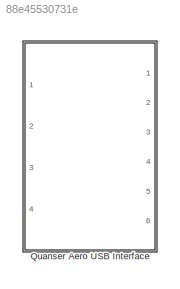
MODEL slx_88e45530731e
KIND library
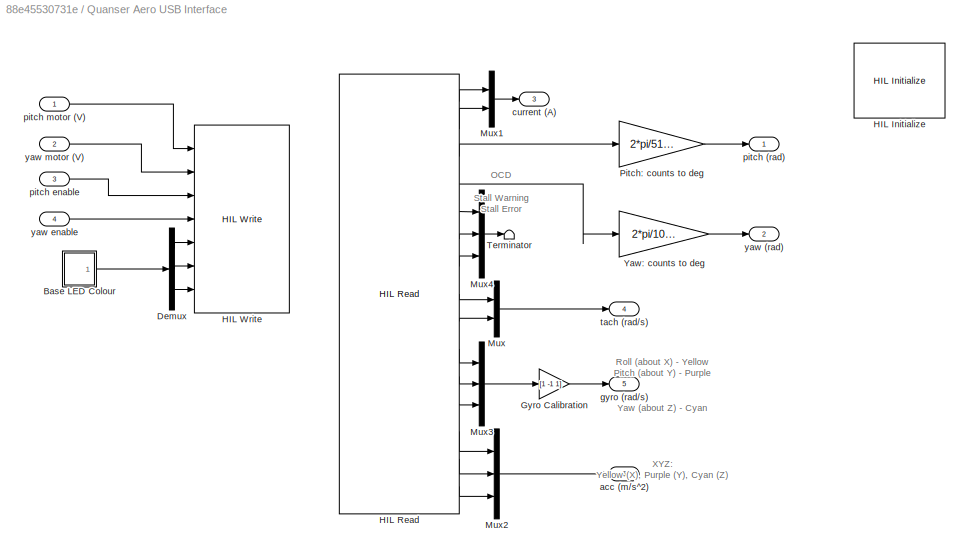
BLOCK [SubSystem] Quanser Aero USB Interface
  Ports = [4, 6]
  RequestExecContextInheritance = off
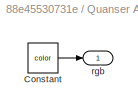
BLOCK [SubSystem] Quanser Aero USB Interface/Base LED Colour
  OpenFcn = color_constant_properties('CurrentBlock', gcbh);
  Ports = [0, 1]
  RequestExecContextInheritance = off
BLOCK [Constant] Quanser Aero USB Interface/Base LED Colour/Constant
  Value = color
BLOCK [Outport] Quanser Aero USB Interface/Base LED Colour/rgb
  IconDisplay = Port number
BLOCK [Demux] Quanser Aero USB Interface/Demux
  DisplayOption = bar
  Outputs = 3
  Ports = [1, 3]
BLOCK [Gain] Quanser Aero USB Interface/Gyro Calibration
  Gain = [1 -1 1]
  OutDataTypeStr = Inherit: Inherit via internal rule
  ParamDataTypeStr = Inherit: Inherit via internal rule
  SaturateOnIntegerOverflow = off
BLOCK [Reference] Quanser Aero USB Interface/HIL Initialize  REF=quarc_library/Data Acquisition/Generic/Configuration/HIL Initialize
  AttributesFormatString = %<object_name> (%<board_type>-%<board_number>)
  Ports = []
  Priority = -99
  SourceBlock = quarc_library/Data Acquisition/Generic/Configuration/HIL Initialize
  SourceType = HIL Initialize
  UserDataPersistent = on
  active = off
  analog_input_channels = [0:1]
  analog_input_maximums = 3
  analog_input_minimums = -3
  analog_output_channels = [0:1]
  analog_output_maximums = 24
  analog_output_minimums = -24
  board_number = 0
  board_type = quanser_aero_usb
  clock_modes = []
  digital_input_channels = []
  digital_output_channels = [0:1]
  digital_output_configuration = []
  encoder_channels = [0:3]
  encoder_filter_frequency = []
  exclusive = off
  final_analog_outputs = [0]
  final_digital_outputs = [0]
  final_other_outputs = [1 0 0]
  final_pwm_outputs = []
  hardware_clocks = [0]
  initial_analog_outputs = [0]
  initial_clock_frequencies = []
  initial_digital_outputs = [1]
  initial_encoder_counts = [0]
  initial_other_outputs = [0 1 0]
  initial_pwm_outputs = []
  object_name = HIL-1
  other_output_channels = [11000:11002]
  pwm_alignment = []
  pwm_channels = []
  pwm_configuration = []
  pwm_frequency = []
  pwm_leading_deadband = []
  pwm_modes = []
  pwm_polarity = []
  pwm_trailing_deadband = []
  quadrature = [4]
  set_analog_input_params_at_start = off
  set_analog_input_params_at_switch_in = off
  set_analog_output_params_at_start = off
  set_analog_output_params_at_switch_in = off
  set_analog_outputs_at_start = on
  set_analog_outputs_at_switch_in = off
  set_analog_outputs_at_switch_out = off
  set_analog_outputs_at_terminate = on
  set_analog_outputs_on_watchdog = on
  set_clock_frequencies_at_start = off
  set_clock_frequencies_at_switch_in = off
  set_clock_params_at_start = off
  set_clock_params_at_switch_in = off
  set_digital_output_params_at_start = off
  set_digital_output_params_at_switch_in = off
  set_digital_outputs_at_start = on
  set_digital_outputs_at_switch_in = off
  set_digital_outputs_at_switch_out = off
  set_digital_outputs_at_terminate = on
  set_digital_outputs_on_watchdog = on
  set_encoder_counts_at_start = on
  set_encoder_counts_at_switch_in = off
  set_encoder_params_at_start = off
  set_encoder_params_at_switch_in = off
  set_other_outputs_at_start = on
  set_other_outputs_at_switch_in = off
  set_other_outputs_at_switch_out = off
  set_other_outputs_at_terminate = on
  set_other_outputs_on_watchdog = on
  set_pwm_outputs_at_start = off
  set_pwm_outputs_at_switch_in = off
  set_pwm_outputs_at_switch_out = off
  set_pwm_outputs_at_terminate = off
  set_pwm_outputs_on_watchdog = off
  set_pwm_params_at_start = off
  set_pwm_params_at_switch_in = off
  watchdog_analog_outputs = [0]
  watchdog_digital_outputs = [0]
  watchdog_other_outputs = [0 0 1]
  watchdog_pwm_outputs = []
BLOCK [Reference] Quanser Aero USB Interface/HIL Read  REF=quarc_library/Data Acquisition/Generic/Immediate I//O/HIL Read
  AttributesFormatString = (%<object_name>)
  Ports = [0, 15]
  SourceBlock = quarc_library/Data Acquisition/Generic/Immediate I//O/HIL Read
  SourceType = HIL Read
  UserDataPersistent = on
  active = on
  analog_channels = [0:1]
  data_type_mode = Inherit via back propagation
  digital_channels = [0:2]
  digital_data_type = boolean
  encoder_channels = [2:3]
  encoder_data_type = double
  object_name = HIL-1
  other_channels = [14000:14001 3000:3002 4000:4002]
  sample_time = qc_get_step_size
  vector_output = off
BLOCK [Reference] Quanser Aero USB Interface/HIL Write  REF=quarc_library/Data Acquisition/Generic/Immediate I//O/HIL Write
  AttributesFormatString = (%<object_name>)
  Ports = [7]
  SourceBlock = quarc_library/Data Acquisition/Generic/Immediate I//O/HIL Write
  SourceType = HIL Write
  UserDataPersistent = on
  active = off
  analog_channels = [0:1]
  digital_channels = [0:1]
  object_name = HIL-1
  other_channels = [11000:11002]
  pwm_channels = []
  sample_time = -1
  vector_input = off
BLOCK [Mux] Quanser Aero USB Interface/Mux
  DisplayOption = bar
  Inputs = 2
  Ports = [2, 1]
BLOCK [Mux] Quanser Aero USB Interface/Mux1
  DisplayOption = bar
  Inputs = 2
  Ports = [2, 1]
BLOCK [Mux] Quanser Aero USB Interface/Mux2
  DisplayOption = bar
  Inputs = 3
  Ports = [3, 1]
BLOCK [Mux] Quanser Aero USB Interface/Mux3
  DisplayOption = bar
  Inputs = 3
  Ports = [3, 1]
BLOCK [Mux] Quanser Aero USB Interface/Mux4
  DisplayOption = bar
  Inputs = 3
  Ports = [3, 1]
BLOCK [Gain] Quanser Aero USB Interface/Pitch: counts to deg
  Gain = 2*pi/512/4
  OutDataTypeStr = Inherit: Inherit via internal rule
  ParamDataTypeStr = Inherit: Inherit via internal rule
  SaturateOnIntegerOverflow = off
BLOCK [Terminator] Quanser Aero USB Interface/Terminator
BLOCK [Gain] Quanser Aero USB Interface/Yaw: counts to deg
  Gain = 2*pi/1024/4
  OutDataTypeStr = Inherit: Inherit via internal rule
  ParamDataTypeStr = Inherit: Inherit via internal rule
  SaturateOnIntegerOverflow = off
BLOCK [Outport] Quanser Aero USB Interface/acc (m//s^2)
  IconDisplay = Port number
  Port = 6
BLOCK [Outport] Quanser Aero USB Interface/current (A)
  IconDisplay = Port number
  Port = 3
BLOCK [Outport] Quanser Aero USB Interface/gyro (rad//s)
  IconDisplay = Port number
  Port = 5
BLOCK [Outport] Quanser Aero USB Interface/pitch (rad)
  IconDisplay = Port number
BLOCK [Inport] Quanser Aero USB Interface/pitch enable
  IconDisplay = Port number
  Port = 3
BLOCK [Inport] Quanser Aero USB Interface/pitch motor (V)
  IconDisplay = Port number
BLOCK [Outport] Quanser Aero USB Interface/tach (rad//s)
  IconDisplay = Port number
  Port = 4
BLOCK [Outport] Quanser Aero USB Interface/yaw (rad)
  IconDisplay = Port number
  Port = 2
BLOCK [Inport] Quanser Aero USB Interface/yaw enable
  IconDisplay = Port number
  Port = 4
BLOCK [Inport] Quanser Aero USB Interface/yaw motor (V)
  IconDisplay = Port number
  Port = 2
ANNOTATION Quanser Aero USB Interface: OCD Stall Warning Stall Error
ANNOTATION Quanser Aero USB Interface: Roll (about X) - Yellow Pitch (about Y) - Purple Yaw (about Z) - Cyan
ANNOTATION Quanser Aero USB Interface: XYZ: Yellow (X), Purple (Y), Cyan (Z)
LINE Quanser Aero USB Interface/Base LED Colour:1 -> Quanser Aero USB Interface/Demux:1
LINE Quanser Aero USB Interface/Demux:1 -> Quanser Aero USB Interface/HIL Write:5
LINE Quanser Aero USB Interface/Demux:2 -> Quanser Aero USB Interface/HIL Write:6
LINE Quanser Aero USB Interface/Demux:3 -> Quanser Aero USB Interface/HIL Write:7
LINE Quanser Aero USB Interface/Gyro Calibration:1 -> Quanser Aero USB Interface/gyro (rad//s):1
LINE Quanser Aero USB Interface/HIL Read:1 -> Quanser Aero USB Interface/Mux1:1
LINE Quanser Aero USB Interface/HIL Read:10 -> Quanser Aero USB Interface/Mux3:1
LINE Quanser Aero USB Interface/HIL Read:11 -> Quanser Aero USB Interface/Mux3:2
LINE Quanser Aero USB Interface/HIL Read:12 -> Quanser Aero USB Interface/Mux3:3
LINE Quanser Aero USB Interface/HIL Read:13 -> Quanser Aero USB Interface/Mux2:1
LINE Quanser Aero USB Interface/HIL Read:14 -> Quanser Aero USB Interface/Mux2:2
LINE Quanser Aero USB Interface/HIL Read:15 -> Quanser Aero USB Interface/Mux2:3
LINE Quanser Aero USB Interface/HIL Read:2 -> Quanser Aero USB Interface/Mux1:2
LINE Quanser Aero USB Interface/HIL Read:3 -> Quanser Aero USB Interface/Pitch: counts to deg:1
LINE Quanser Aero USB Interface/HIL Read:4 -> Quanser Aero USB Interface/Yaw: counts to deg:1
LINE Quanser Aero USB Interface/HIL Read:5 -> Quanser Aero USB Interface/Mux4:1
LINE Quanser Aero USB Interface/HIL Read:6 -> Quanser Aero USB Interface/Mux4:2
LINE Quanser Aero USB Interface/HIL Read:7 -> Quanser Aero USB Interface/Mux4:3
LINE Quanser Aero USB Interface/HIL Read:8 -> Quanser Aero USB Interface/Mux:1
LINE Quanser Aero USB Interface/HIL Read:9 -> Quanser Aero USB Interface/Mux:2
LINE Quanser Aero USB Interface/Mux1:1 -> Quanser Aero USB Interface/current (A):1
LINE Quanser Aero USB Interface/Mux2:1 -> Quanser Aero USB Interface/acc (m//s^2):1
LINE Quanser Aero USB Interface/Mux3:1 -> Quanser Aero USB Interface/Gyro Calibration:1
LINE Quanser Aero USB Interface/Mux4:1 -> Quanser Aero USB Interface/Terminator:1
LINE Quanser Aero USB Interface/Mux:1 -> Quanser Aero USB Interface/tach (rad//s):1
LINE Quanser Aero USB Interface/Pitch: counts to deg:1 -> Quanser Aero USB Interface/pitch (rad):1
LINE Quanser Aero USB Interface/Yaw: counts to deg:1 -> Quanser Aero USB Interface/yaw (rad):1
LINE Quanser Aero USB Interface/pitch enable:1 -> Quanser Aero USB Interface/HIL Write:3
LINE Quanser Aero USB Interface/pitch motor (V):1 -> Quanser Aero USB Interface/HIL Write:1
LINE Quanser Aero USB Interface/yaw enable:1 -> Quanser Aero USB Interface/HIL Write:4
LINE Quanser Aero USB Interface/yaw motor (V):1 -> Quanser Aero USB Interface/HIL Write:2
